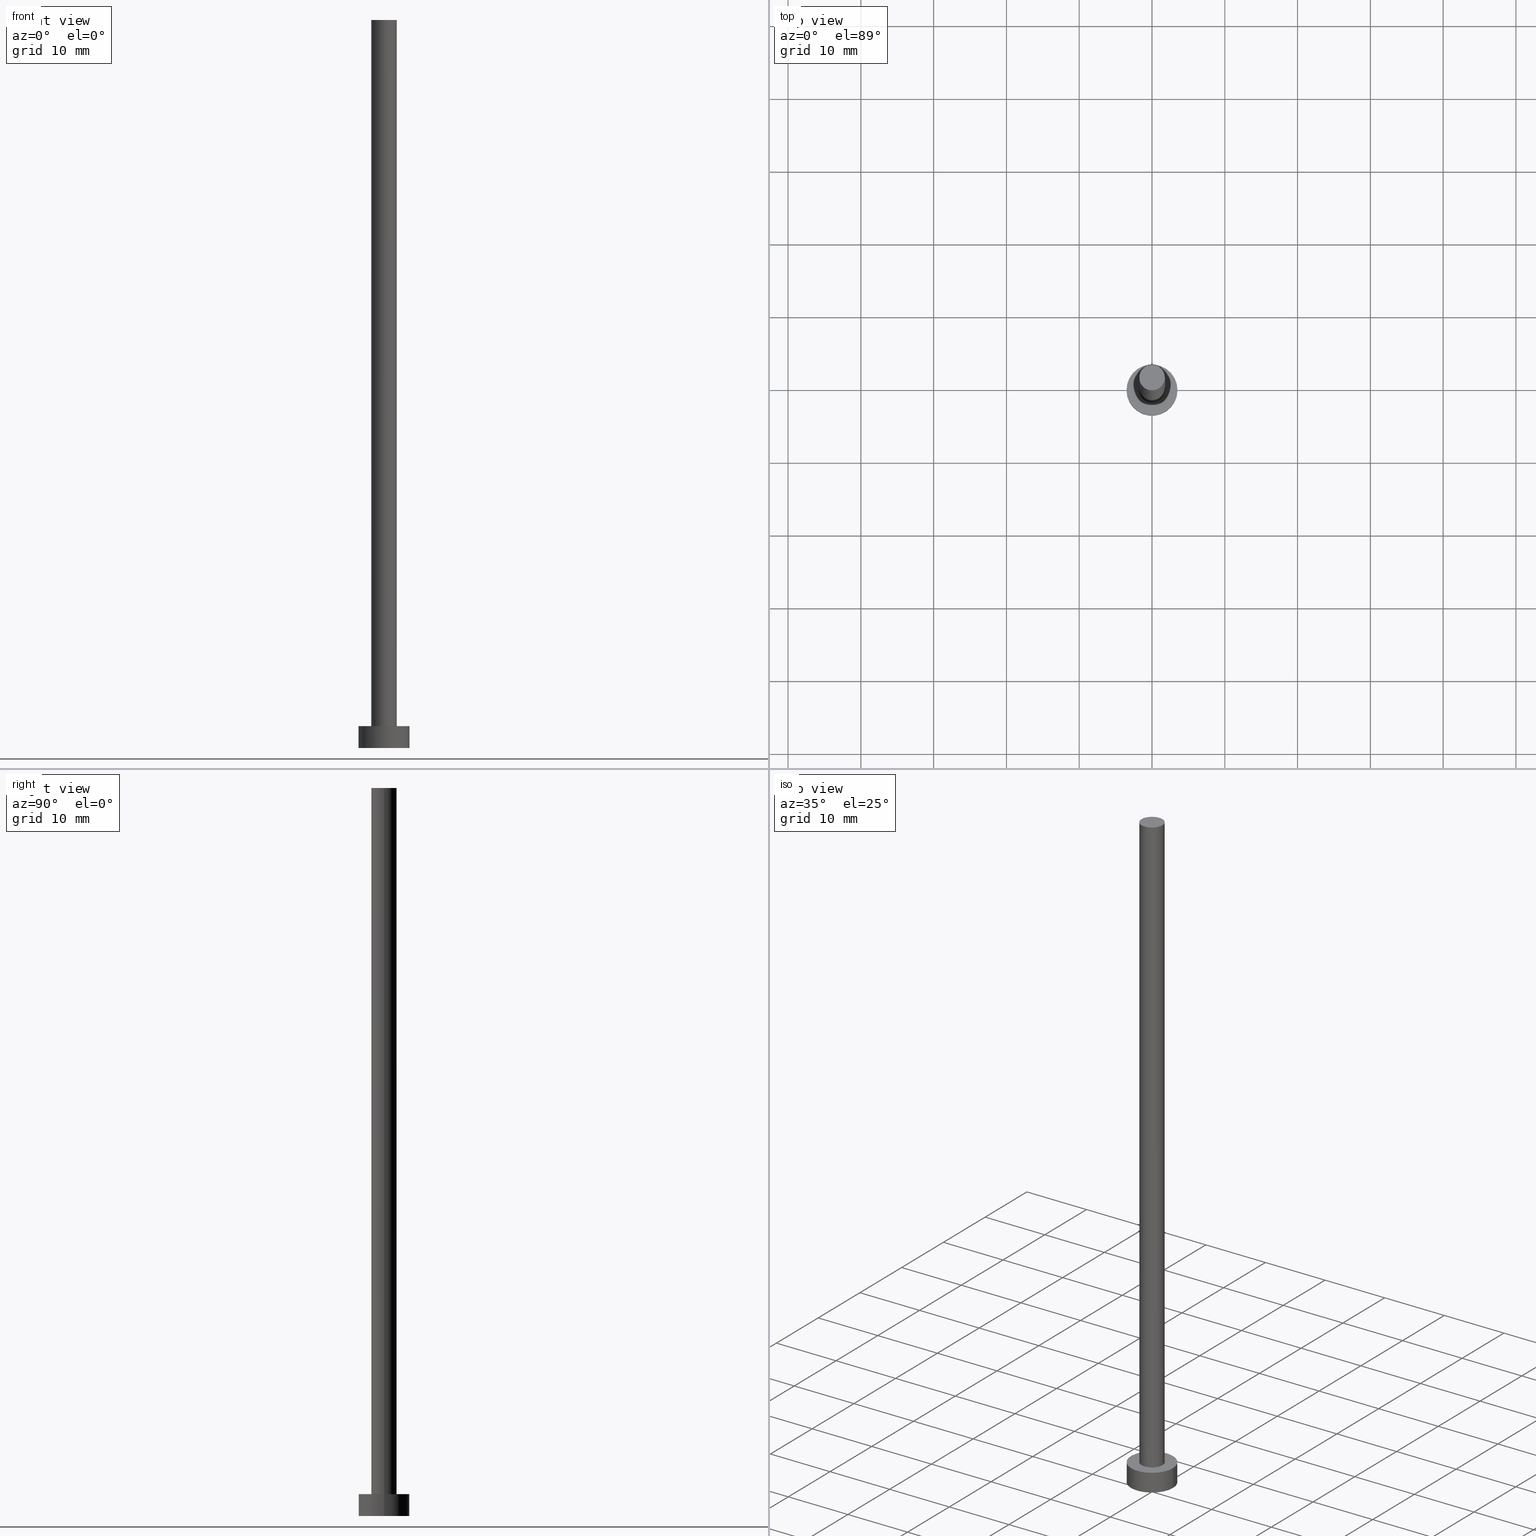
[diagram: canonical four-view strip — front | top / right | iso, engineering-drawing reading convention]
A machine part, canonical four-view strip (front | top / right | iso — engineering-drawing reading convention). The complete STEP part file that produces these views, byte-faithful:
ISO-10303-21;
HEADER;
FILE_DESCRIPTION (( 'STEP AP203' ),
    '1' );
FILE_NAME ('ee12.STEP',
    '2023-02-13T14:24:35',
    ( '' ),
    ( '' ),
    'SwSTEP 2.0',
    'SolidWorks 2019',
    '' );
FILE_SCHEMA (( 'CONFIG_CONTROL_DESIGN' ));
ENDSEC;

DATA;
#1 = AXIS2_PLACEMENT_3D ( 'NONE', #175, #68, #9 ) ;
#2 =( NAMED_UNIT ( * ) SI_UNIT ( $, .STERADIAN. ) SOLID_ANGLE_UNIT ( ) );
#3 = ORIENTED_EDGE ( 'NONE', *, *, #60, .F. ) ;
#4 = ORIENTED_EDGE ( 'NONE', *, *, #32, .T. ) ;
#5 = SECURITY_CLASSIFICATION_LEVEL ( 'unclassified' ) ;
#6 = ORIENTED_EDGE ( 'NONE', *, *, #154, .T. ) ;
#7 = COORDINATED_UNIVERSAL_TIME_OFFSET ( 1, 0, .AHEAD. ) ;
#8 = VERTEX_POINT ( 'NONE', #23 ) ;
#9 = DIRECTION ( 'NONE',  ( -1.000000000000000000, 0.000000000000000000, 0.000000000000000000 ) ) ;
#10 = CARTESIAN_POINT ( 'NONE',  ( -3.500000000000000444, 0.000000000000000000, 3.000000000000000000 ) ) ;
#11 = AXIS2_PLACEMENT_3D ( 'NONE', #220, #44, #48 ) ;
#12 = PLANE ( 'NONE',  #70 ) ;
#13 = DIRECTION ( 'NONE',  ( -0.000000000000000000, -0.000000000000000000, -1.000000000000000000 ) ) ;
#14 = CC_DESIGN_PERSON_AND_ORGANIZATION_ASSIGNMENT ( #173, #194, ( #49 ) ) ;
#15 = ORIENTED_EDGE ( 'NONE', *, *, #181, .T. ) ;
#16 = DIRECTION ( 'NONE',  ( -1.000000000000000000, 0.000000000000000000, 0.000000000000000000 ) ) ;
#17 = ADVANCED_FACE ( 'NONE', ( #211, #232 ), #144, .T. ) ;
#18 = CALENDAR_DATE ( 2023, 13, 2 ) ;
#19 = DIRECTION ( 'NONE',  ( 1.000000000000000000, 0.000000000000000000, 0.000000000000000000 ) ) ;
#20 = EDGE_CURVE ( 'NONE', #31, #140, #208, .T. ) ;
#21 = DATE_AND_TIME ( #237, #134 ) ;
#22 = PRODUCT_DEFINITION_SHAPE ( 'NONE', 'NONE',  #27 ) ;
#23 = CARTESIAN_POINT ( 'NONE',  ( 3.500000000000000444, 4.286263797015737088E-16, 3.000000000000000000 ) ) ;
#24 = CARTESIAN_POINT ( 'NONE',  ( -3.500000000000000444, 0.000000000000000000, 0.000000000000000000 ) ) ;
#25 = CARTESIAN_POINT ( 'NONE',  ( 0.000000000000000000, 0.000000000000000000, 0.000000000000000000 ) ) ;
#26 = CARTESIAN_POINT ( 'NONE',  ( -1.750000000000000000, 0.000000000000000000, 100.0000000000000000 ) ) ;
#27 = PRODUCT_DEFINITION ( 'NEZN�M�', '', #49, #28 ) ;
#28 = DESIGN_CONTEXT ( 'detailed design', #197, 'design' ) ;
#29 = LINE ( 'NONE', #10, #158 ) ;
#30 = CALENDAR_DATE ( 2023, 13, 2 ) ;
#31 = VERTEX_POINT ( 'NONE', #145 ) ;
#32 = EDGE_CURVE ( 'NONE', #242, #8, #45, .T. ) ;
#33 = CARTESIAN_POINT ( 'NONE',  ( 0.000000000000000000, 0.000000000000000000, 3.000000000000000000 ) ) ;
#34 = DIRECTION ( 'NONE',  ( 0.000000000000000000, 0.000000000000000000, 1.000000000000000000 ) ) ;
#35 = AXIS2_PLACEMENT_3D ( 'NONE', #100, #222, #118 ) ;
#36 = APPROVAL_STATUS ( 'not_yet_approved' ) ;
#37 = EDGE_LOOP ( 'NONE', ( #123, #214, #186, #115 ) ) ;
#38 = PRODUCT_RELATED_PRODUCT_CATEGORY ( 'detail', '', ( #198 ) ) ;
#39 = DATE_AND_TIME ( #215, #138 ) ;
#40 = LINE ( 'NONE', #136, #75 ) ;
#41 = DIRECTION ( 'NONE',  ( 0.000000000000000000, 0.000000000000000000, 1.000000000000000000 ) ) ;
#42 = DIRECTION ( 'NONE',  ( 0.000000000000000000, 0.000000000000000000, 1.000000000000000000 ) ) ;
#43 = CIRCLE ( 'NONE', #182, 1.750000000000000000 ) ;
#44 = DIRECTION ( 'NONE',  ( 0.000000000000000000, 0.000000000000000000, 1.000000000000000000 ) ) ;
#45 = CIRCLE ( 'NONE', #87, 3.500000000000000444 ) ;
#46 = DIRECTION ( 'NONE',  ( 1.000000000000000000, 0.000000000000000000, 0.000000000000000000 ) ) ;
#47 = VECTOR ( 'NONE', #156, 1000.000000000000000 ) ;
#48 = DIRECTION ( 'NONE',  ( 1.000000000000000000, 0.000000000000000000, 0.000000000000000000 ) ) ;
#49 = PRODUCT_DEFINITION_FORMATION_WITH_SPECIFIED_SOURCE ( 'LIBOVOLN�', '', #198, .NOT_KNOWN. ) ;
#50 = PERSON_AND_ORGANIZATION_ROLE ( 'design_owner' ) ;
#51 = ADVANCED_FACE ( 'NONE', ( #164 ), #254, .T. ) ;
#52 = ORIENTED_EDGE ( 'NONE', *, *, #161, .F. ) ;
#53 = CARTESIAN_POINT ( 'NONE',  ( 0.000000000000000000, 0.000000000000000000, 0.000000000000000000 ) ) ;
#54 = ADVANCED_FACE ( 'NONE', ( #99 ), #111, .T. ) ;
#55 = DIRECTION ( 'NONE',  ( 1.000000000000000000, 0.000000000000000000, 0.000000000000000000 ) ) ;
#56 = APPROVAL_PERSON_ORGANIZATION ( #98, #241, #112 ) ;
#57 = DIRECTION ( 'NONE',  ( 0.000000000000000000, 0.000000000000000000, 1.000000000000000000 ) ) ;
#58 = PERSON_AND_ORGANIZATION ( #212, #128 ) ;
#59 = LOCAL_TIME ( 15, 24, 35.00000000000000000, #74 ) ;
#60 = EDGE_CURVE ( 'NONE', #140, #31, #69, .T. ) ;
#61 = EDGE_LOOP ( 'NONE', ( #205, #246 ) ) ;
#62 = ORIENTED_EDGE ( 'NONE', *, *, #93, .F. ) ;
#63 = EDGE_CURVE ( 'NONE', #8, #31, #166, .T. ) ;
#64 = CLOSED_SHELL ( 'NONE', ( #51, #119, #54, #17, #206, #189, #225 ) ) ;
#65 = ORIENTED_EDGE ( 'NONE', *, *, #149, .F. ) ;
#66 = FACE_OUTER_BOUND ( 'NONE', #172, .T. ) ;
#67 = ORIENTED_EDGE ( 'NONE', *, *, #20, .F. ) ;
#68 = DIRECTION ( 'NONE',  ( -0.000000000000000000, -0.000000000000000000, -1.000000000000000000 ) ) ;
#69 = CIRCLE ( 'NONE', #116, 3.500000000000000444 ) ;
#70 = AXIS2_PLACEMENT_3D ( 'NONE', #84, #42, #195 ) ;
#71 = CC_DESIGN_APPROVAL ( #241, ( #228 ) ) ;
#72 = ORIENTED_EDGE ( 'NONE', *, *, #181, .F. ) ;
#73 = CC_DESIGN_PERSON_AND_ORGANIZATION_ASSIGNMENT ( #226, #50, ( #198 ) ) ;
#74 = COORDINATED_UNIVERSAL_TIME_OFFSET ( 1, 0, .AHEAD. ) ;
#75 = VECTOR ( 'NONE', #176, 1000.000000000000000 ) ;
#76 = CARTESIAN_POINT ( 'NONE',  ( 0.000000000000000000, 0.000000000000000000, 100.0000000000000000 ) ) ;
#77 = APPROVAL ( #229, 'NEUR�EN�' ) ;
#78 = DIRECTION ( 'NONE',  ( 1.000000000000000000, 0.000000000000000000, 0.000000000000000000 ) ) ;
#79 = AXIS2_PLACEMENT_3D ( 'NONE', #102, #201, #224 ) ;
#80 = VERTEX_POINT ( 'NONE', #235 ) ;
#81 = EDGE_CURVE ( 'NONE', #80, #170, #43, .T. ) ;
#82 = LINE ( 'NONE', #139, #47 ) ;
#83 = DIRECTION ( 'NONE',  ( 1.000000000000000000, 0.000000000000000000, -0.000000000000000000 ) ) ;
#84 = CARTESIAN_POINT ( 'NONE',  ( 0.000000000000000000, 0.000000000000000000, 100.0000000000000000 ) ) ;
#85 = CARTESIAN_POINT ( 'NONE',  ( 0.000000000000000000, 0.000000000000000000, 100.0000000000000000 ) ) ;
#86 = UNCERTAINTY_MEASURE_WITH_UNIT (LENGTH_MEASURE( 1.000000000000000082E-05 ), #157, 'distance_accuracy_value', 'NONE');
#87 = AXIS2_PLACEMENT_3D ( 'NONE', #91, #109, #92 ) ;
#88 = AXIS2_PLACEMENT_3D ( 'NONE', #85, #121, #46 ) ;
#89 = CC_DESIGN_PERSON_AND_ORGANIZATION_ASSIGNMENT ( #155, #217, ( #49 ) ) ;
#90 = DATE_AND_TIME ( #18, #160 ) ;
#91 = CARTESIAN_POINT ( 'NONE',  ( 0.000000000000000000, 0.000000000000000000, 3.000000000000000000 ) ) ;
#92 = DIRECTION ( 'NONE',  ( 1.000000000000000000, 0.000000000000000000, 0.000000000000000000 ) ) ;
#93 = EDGE_CURVE ( 'NONE', #106, #80, #40, .T. ) ;
#94 = AXIS2_PLACEMENT_3D ( 'NONE', #114, #34, #55 ) ;
#95 = ORIENTED_EDGE ( 'NONE', *, *, #93, .T. ) ;
#96 = LOCAL_TIME ( 15, 24, 35.00000000000000000, #252 ) ;
#97 = DIRECTION ( 'NONE',  ( 0.000000000000000000, 0.000000000000000000, 1.000000000000000000 ) ) ;
#98 = PERSON_AND_ORGANIZATION ( #212, #128 ) ;
#99 = FACE_OUTER_BOUND ( 'NONE', #37, .T. ) ;
#100 = CARTESIAN_POINT ( 'NONE',  ( 0.000000000000000000, 0.000000000000000000, 3.000000000000000000 ) ) ;
#101 = DIRECTION ( 'NONE',  ( 0.000000000000000000, 0.000000000000000000, 1.000000000000000000 ) ) ;
#102 = CARTESIAN_POINT ( 'NONE',  ( 0.000000000000000000, 0.000000000000000000, 3.000000000000000000 ) ) ;
#103 = FACE_OUTER_BOUND ( 'NONE', #178, .T. ) ;
#104 = CIRCLE ( 'NONE', #88, 1.750000000000000000 ) ;
#105 = APPROVAL_DATE_TIME ( #148, #250 ) ;
#106 = VERTEX_POINT ( 'NONE', #26 ) ;
#107 = CIRCLE ( 'NONE', #35, 3.500000000000000444 ) ;
#108 = COORDINATED_UNIVERSAL_TIME_OFFSET ( 1, 0, .AHEAD. ) ;
#109 = DIRECTION ( 'NONE',  ( 0.000000000000000000, 0.000000000000000000, 1.000000000000000000 ) ) ;
#110 = EDGE_CURVE ( 'NONE', #170, #80, #183, .T. ) ;
#111 = CYLINDRICAL_SURFACE ( 'NONE', #233, 3.500000000000000444 ) ;
#112 = APPROVAL_ROLE ( '' ) ;
#113 = CARTESIAN_POINT ( 'NONE',  ( 0.000000000000000000, 0.000000000000000000, 3.000000000000000000 ) ) ;
#114 = CARTESIAN_POINT ( 'NONE',  ( 0.000000000000000000, 0.000000000000000000, 0.000000000000000000 ) ) ;
#115 = ORIENTED_EDGE ( 'NONE', *, *, #60, .T. ) ;
#116 = AXIS2_PLACEMENT_3D ( 'NONE', #53, #190, #19 ) ;
#117 = FACE_OUTER_BOUND ( 'NONE', #219, .T. ) ;
#118 = DIRECTION ( 'NONE',  ( 1.000000000000000000, 0.000000000000000000, 0.000000000000000000 ) ) ;
#119 = ADVANCED_FACE ( 'NONE', ( #117 ), #120, .T. ) ;
#120 = CYLINDRICAL_SURFACE ( 'NONE', #79, 3.500000000000000444 ) ;
#121 = DIRECTION ( 'NONE',  ( 0.000000000000000000, 0.000000000000000000, 1.000000000000000000 ) ) ;
#122 = APPROVAL_PERSON_ORGANIZATION ( #213, #250, #165 ) ;
#123 = ORIENTED_EDGE ( 'NONE', *, *, #63, .F. ) ;
#124 = APPROVAL_ROLE ( '' ) ;
#125 = DIRECTION ( 'NONE',  ( -0.000000000000000000, -0.000000000000000000, -1.000000000000000000 ) ) ;
#126 = APPROVAL_DATE_TIME ( #231, #77 ) ;
#127 = AXIS2_PLACEMENT_3D ( 'NONE', #76, #125, #16 ) ;
#128 = ORGANIZATION ( 'NEUR�EN�', 'NEUR�EN�', '' ) ;
#129 = EDGE_LOOP ( 'NONE', ( #4, #244 ) ) ;
#130 = CARTESIAN_POINT ( 'NONE',  ( 0.000000000000000000, 0.000000000000000000, 3.000000000000000000 ) ) ;
#131 = SHAPE_DEFINITION_REPRESENTATION ( #22, #146 ) ;
#132 = EDGE_LOOP ( 'NONE', ( #3, #67 ) ) ;
#133 = APPROVAL_DATE_TIME ( #21, #241 ) ;
#134 = LOCAL_TIME ( 15, 24, 35.00000000000000000, #191 ) ;
#135 = CARTESIAN_POINT ( 'NONE',  ( -3.500000000000000444, 0.000000000000000000, 3.000000000000000000 ) ) ;
#136 = CARTESIAN_POINT ( 'NONE',  ( -1.750000000000000000, 0.000000000000000000, 100.0000000000000000 ) ) ;
#137 = PERSON_AND_ORGANIZATION_ROLE ( 'classification_officer' ) ;
#138 = LOCAL_TIME ( 15, 24, 35.00000000000000000, #7 ) ;
#139 = CARTESIAN_POINT ( 'NONE',  ( 1.750000000000000000, 2.143131898507867804E-16, 100.0000000000000000 ) ) ;
#140 = VERTEX_POINT ( 'NONE', #24 ) ;
#141 = DIRECTION ( 'NONE',  ( 1.000000000000000000, 0.000000000000000000, 0.000000000000000000 ) ) ;
#142 = AXIS2_PLACEMENT_3D ( 'NONE', #218, #179, #141 ) ;
#143 = APPLICATION_PROTOCOL_DEFINITION ( 'international standard', 'config_control_design', 1994, #197 ) ;
#144 = PLANE ( 'NONE',  #152 ) ;
#145 = CARTESIAN_POINT ( 'NONE',  ( 3.500000000000000444, 4.286263797015737088E-16, 0.000000000000000000 ) ) ;
#146 = ADVANCED_BREP_SHAPE_REPRESENTATION ( 'ee12', ( #200, #209 ), #204 ) ;
#147 = VECTOR ( 'NONE', #150, 1000.000000000000000 ) ;
#148 = DATE_AND_TIME ( #184, #59 ) ;
#149 = EDGE_CURVE ( 'NONE', #207, #170, #82, .T. ) ;
#150 = DIRECTION ( 'NONE',  ( -0.000000000000000000, -0.000000000000000000, -1.000000000000000000 ) ) ;
#151 = CARTESIAN_POINT ( 'NONE',  ( 0.000000000000000000, 0.000000000000000000, 0.000000000000000000 ) ) ;
#152 = AXIS2_PLACEMENT_3D ( 'NONE', #113, #41, #230 ) ;
#153 = ORIENTED_EDGE ( 'NONE', *, *, #110, .T. ) ;
#154 = EDGE_CURVE ( 'NONE', #106, #207, #245, .T. ) ;
#155 = PERSON_AND_ORGANIZATION ( #212, #128 ) ;
#156 = DIRECTION ( 'NONE',  ( -0.000000000000000000, -0.000000000000000000, -1.000000000000000000 ) ) ;
#157 =( LENGTH_UNIT ( ) NAMED_UNIT ( * ) SI_UNIT ( .MILLI., .METRE. ) );
#158 = VECTOR ( 'NONE', #13, 1000.000000000000000 ) ;
#159 = CYLINDRICAL_SURFACE ( 'NONE', #1, 1.750000000000000000 ) ;
#160 = LOCAL_TIME ( 15, 24, 35.00000000000000000, #108 ) ;
#161 = EDGE_CURVE ( 'NONE', #242, #140, #29, .T. ) ;
#162 = PERSON_AND_ORGANIZATION ( #212, #128 ) ;
#163 = DIRECTION ( 'NONE',  ( -0.000000000000000000, -0.000000000000000000, -1.000000000000000000 ) ) ;
#164 = FACE_OUTER_BOUND ( 'NONE', #223, .T. ) ;
#165 = APPROVAL_ROLE ( '' ) ;
#166 = LINE ( 'NONE', #255, #147 ) ;
#167 = CC_DESIGN_SECURITY_CLASSIFICATION ( #228, ( #49 ) ) ;
#168 = DIRECTION ( 'NONE',  ( -1.000000000000000000, 0.000000000000000000, 0.000000000000000000 ) ) ;
#169 = APPROVAL_STATUS ( 'not_yet_approved' ) ;
#170 = VERTEX_POINT ( 'NONE', #249 ) ;
#171 = AXIS2_PLACEMENT_3D ( 'NONE', #25, #101, #83 ) ;
#172 = EDGE_LOOP ( 'NONE', ( #6, #15 ) ) ;
#173 = PERSON_AND_ORGANIZATION ( #212, #128 ) ;
#174 = EDGE_CURVE ( 'NONE', #8, #242, #107, .T. ) ;
#175 = CARTESIAN_POINT ( 'NONE',  ( 0.000000000000000000, 0.000000000000000000, 100.0000000000000000 ) ) ;
#176 = DIRECTION ( 'NONE',  ( -0.000000000000000000, -0.000000000000000000, -1.000000000000000000 ) ) ;
#177 = APPLICATION_CONTEXT ( 'configuration controlled 3d designs of mechanical parts and assemblies' ) ;
#178 = EDGE_LOOP ( 'NONE', ( #65, #240, #95, #196 ) ) ;
#179 = DIRECTION ( 'NONE',  ( 0.000000000000000000, 0.000000000000000000, 1.000000000000000000 ) ) ;
#180 = ORIENTED_EDGE ( 'NONE', *, *, #20, .T. ) ;
#181 = EDGE_CURVE ( 'NONE', #207, #106, #104, .T. ) ;
#182 = AXIS2_PLACEMENT_3D ( 'NONE', #130, #57, #216 ) ;
#183 = CIRCLE ( 'NONE', #142, 1.750000000000000000 ) ;
#184 = CALENDAR_DATE ( 2023, 13, 2 ) ;
#185 = CC_DESIGN_PERSON_AND_ORGANIZATION_ASSIGNMENT ( #187, #210, ( #27 ) ) ;
#186 = ORIENTED_EDGE ( 'NONE', *, *, #161, .T. ) ;
#187 = PERSON_AND_ORGANIZATION ( #212, #128 ) ;
#188 = ORIENTED_EDGE ( 'NONE', *, *, #174, .F. ) ;
#189 = ADVANCED_FACE ( 'NONE', ( #103 ), #159, .T. ) ;
#190 = DIRECTION ( 'NONE',  ( 0.000000000000000000, 0.000000000000000000, 1.000000000000000000 ) ) ;
#191 = COORDINATED_UNIVERSAL_TIME_OFFSET ( 1, 0, .AHEAD. ) ;
#192 = ORIENTED_EDGE ( 'NONE', *, *, #63, .T. ) ;
#193 = MECHANICAL_CONTEXT ( 'NONE', #177, 'mechanical' ) ;
#194 = PERSON_AND_ORGANIZATION_ROLE ( 'design_supplier' ) ;
#195 = DIRECTION ( 'NONE',  ( 1.000000000000000000, 0.000000000000000000, -0.000000000000000000 ) ) ;
#196 = ORIENTED_EDGE ( 'NONE', *, *, #81, .T. ) ;
#197 = APPLICATION_CONTEXT ( 'configuration controlled 3d designs of mechanical parts and assemblies' ) ;
#198 = PRODUCT ( 'ee12', 'ee12', '', ( #193 ) ) ;
#199 = CC_DESIGN_PERSON_AND_ORGANIZATION_ASSIGNMENT ( #58, #137, ( #228 ) ) ;
#200 = MANIFOLD_SOLID_BREP ( 'P�idat vysunut�m3', #64 ) ;
#201 = DIRECTION ( 'NONE',  ( -0.000000000000000000, -0.000000000000000000, -1.000000000000000000 ) ) ;
#202 = FACE_OUTER_BOUND ( 'NONE', #132, .T. ) ;
#203 = PLANE ( 'NONE',  #171 ) ;
#204 =( GEOMETRIC_REPRESENTATION_CONTEXT ( 3 ) GLOBAL_UNCERTAINTY_ASSIGNED_CONTEXT ( ( #86 ) ) GLOBAL_UNIT_ASSIGNED_CONTEXT ( ( #157, #243, #2 ) ) REPRESENTATION_CONTEXT ( 'NONE', 'WORKASPACE' ) );
#205 = ORIENTED_EDGE ( 'NONE', *, *, #81, .F. ) ;
#206 = ADVANCED_FACE ( 'NONE', ( #202 ), #203, .F. ) ;
#207 = VERTEX_POINT ( 'NONE', #247 ) ;
#208 = CIRCLE ( 'NONE', #94, 3.500000000000000444 ) ;
#209 = AXIS2_PLACEMENT_3D ( 'NONE', #151, #97, #78 ) ;
#210 = PERSON_AND_ORGANIZATION_ROLE ( 'creator' ) ;
#211 = FACE_BOUND ( 'NONE', #61, .T. ) ;
#212 = PERSON ( 'NEUR�EN�', 'NEUR�EN�', 'NEUR�EN�', ('NEUR�EN�'), ('NEUR�EN�'), ('NEUR�EN�') ) ;
#213 = PERSON_AND_ORGANIZATION ( #212, #128 ) ;
#214 = ORIENTED_EDGE ( 'NONE', *, *, #32, .F. ) ;
#215 = CALENDAR_DATE ( 2023, 13, 2 ) ;
#216 = DIRECTION ( 'NONE',  ( 1.000000000000000000, 0.000000000000000000, 0.000000000000000000 ) ) ;
#217 = PERSON_AND_ORGANIZATION_ROLE ( 'creator' ) ;
#218 = CARTESIAN_POINT ( 'NONE',  ( 0.000000000000000000, 0.000000000000000000, 3.000000000000000000 ) ) ;
#219 = EDGE_LOOP ( 'NONE', ( #188, #192, #180, #52 ) ) ;
#220 = CARTESIAN_POINT ( 'NONE',  ( 0.000000000000000000, 0.000000000000000000, 100.0000000000000000 ) ) ;
#221 = CC_DESIGN_DATE_AND_TIME_ASSIGNMENT ( #39, #239, ( #228 ) ) ;
#222 = DIRECTION ( 'NONE',  ( 0.000000000000000000, 0.000000000000000000, 1.000000000000000000 ) ) ;
#223 = EDGE_LOOP ( 'NONE', ( #72, #236, #153, #62 ) ) ;
#224 = DIRECTION ( 'NONE',  ( -1.000000000000000000, 0.000000000000000000, 0.000000000000000000 ) ) ;
#225 = ADVANCED_FACE ( 'NONE', ( #66 ), #12, .T. ) ;
#226 = PERSON_AND_ORGANIZATION ( #212, #128 ) ;
#227 = APPROVAL_PERSON_ORGANIZATION ( #162, #77, #124 ) ;
#228 = SECURITY_CLASSIFICATION ( '', '', #5 ) ;
#229 = APPROVAL_STATUS ( 'not_yet_approved' ) ;
#230 = DIRECTION ( 'NONE',  ( 1.000000000000000000, 0.000000000000000000, -0.000000000000000000 ) ) ;
#231 = DATE_AND_TIME ( #30, #96 ) ;
#232 = FACE_OUTER_BOUND ( 'NONE', #129, .T. ) ;
#233 = AXIS2_PLACEMENT_3D ( 'NONE', #33, #163, #168 ) ;
#234 = CC_DESIGN_APPROVAL ( #250, ( #49 ) ) ;
#235 = CARTESIAN_POINT ( 'NONE',  ( -1.750000000000000000, 0.000000000000000000, 3.000000000000000000 ) ) ;
#236 = ORIENTED_EDGE ( 'NONE', *, *, #149, .T. ) ;
#237 = CALENDAR_DATE ( 2023, 13, 2 ) ;
#238 = APPLICATION_PROTOCOL_DEFINITION ( 'international standard', 'config_control_design', 1994, #177 ) ;
#239 = DATE_TIME_ROLE ( 'classification_date' ) ;
#240 = ORIENTED_EDGE ( 'NONE', *, *, #154, .F. ) ;
#241 = APPROVAL ( #169, 'NEUR�EN�' ) ;
#242 = VERTEX_POINT ( 'NONE', #135 ) ;
#243 =( NAMED_UNIT ( * ) PLANE_ANGLE_UNIT ( ) SI_UNIT ( $, .RADIAN. ) );
#244 = ORIENTED_EDGE ( 'NONE', *, *, #174, .T. ) ;
#245 = CIRCLE ( 'NONE', #11, 1.750000000000000000 ) ;
#246 = ORIENTED_EDGE ( 'NONE', *, *, #110, .F. ) ;
#247 = CARTESIAN_POINT ( 'NONE',  ( 1.750000000000000000, 2.143131898507867804E-16, 100.0000000000000000 ) ) ;
#248 = CC_DESIGN_DATE_AND_TIME_ASSIGNMENT ( #90, #253, ( #27 ) ) ;
#249 = CARTESIAN_POINT ( 'NONE',  ( 1.750000000000000000, 2.143131898507867804E-16, 3.000000000000000000 ) ) ;
#250 = APPROVAL ( #36, 'NEUR�EN�' ) ;
#251 = CC_DESIGN_APPROVAL ( #77, ( #27 ) ) ;
#252 = COORDINATED_UNIVERSAL_TIME_OFFSET ( 1, 0, .AHEAD. ) ;
#253 = DATE_TIME_ROLE ( 'creation_date' ) ;
#254 = CYLINDRICAL_SURFACE ( 'NONE', #127, 1.750000000000000000 ) ;
#255 = CARTESIAN_POINT ( 'NONE',  ( 3.500000000000000444, 4.286263797015737088E-16, 3.000000000000000000 ) ) ;
ENDSEC;
END-ISO-10303-21;
